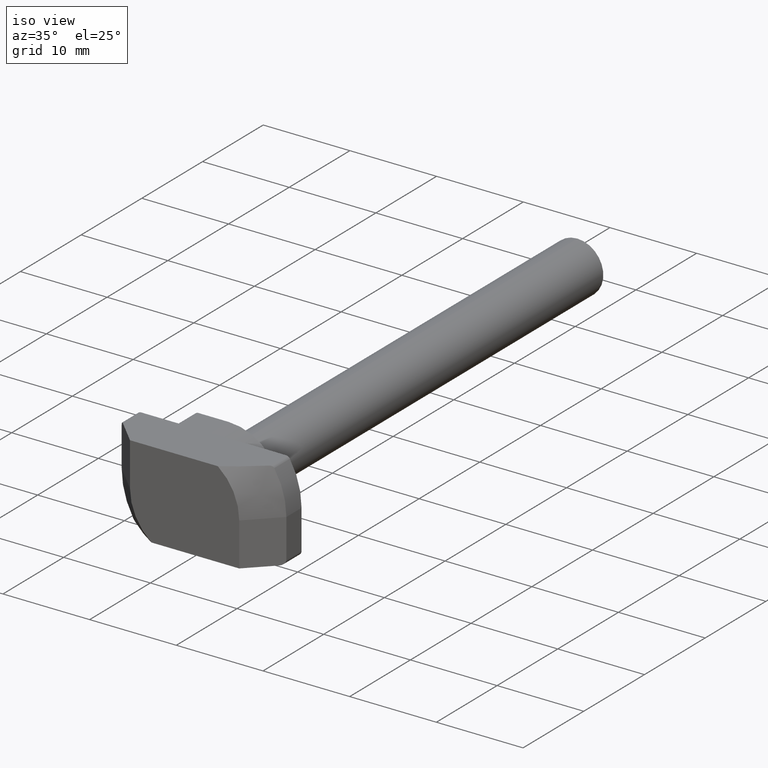
[diagram: clean part render]
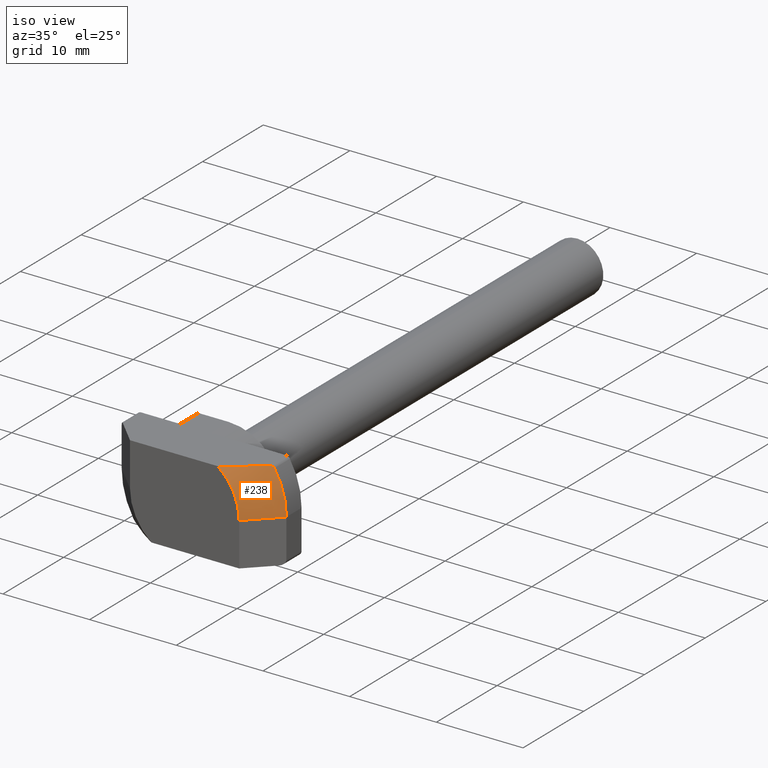
[diagram: same view with one face highlighted and labeled with its STEP entity id]
A machine part, iso view. The second image highlights one B-rep face of the part: STEP entity #238.
In plain terms, the highlighted conical surface has half-angle 45 deg.
Its self-contained STEP definition (entity closure, byte-faithful):
#1 = VERTEX_POINT ( 'NONE', #114 ) ;
#12 = DIRECTION ( 'NONE',  ( 0.000000000000000000, 0.000000000000000000, 1.000000000000000000 ) ) ;
#29 = DIRECTION ( 'NONE',  ( -0.7071067811865474617, -0.7071067811865474617, -0.000000000000000000 ) ) ;
#38 = EDGE_CURVE ( 'NONE', #872, #479, #396, .T. ) ;
#100 = CARTESIAN_POINT ( 'NONE',  ( 8.590887771462600853, -1.189937505768506432, 4.048601022340985622 ) ) ;
#102 = EDGE_CURVE ( 'NONE', #671, #106, #378, .T. ) ;
#106 = VERTEX_POINT ( 'NONE', #158 ) ;
#112 = ORIENTED_EDGE ( 'NONE', *, *, #495, .F. ) ;
#114 = CARTESIAN_POINT ( 'NONE',  ( 9.499999999999998224, -1.150000000000005240, 0.000000000000000000 ) ) ;
#127 = CARTESIAN_POINT ( 'NONE',  ( 3.832753579347366379, -4.349999999999999645, 5.000000000000000000 ) ) ;
#151 = CARTESIAN_POINT ( 'NONE',  ( 7.725812383582646881, -1.447382058005527217, 5.000000000000000000 ) ) ;
#158 = CARTESIAN_POINT ( 'NONE',  ( 6.300000000000000711, -4.349999999999999645, 0.000000000000000000 ) ) ;
#174 = ORIENTED_EDGE ( 'NONE', *, *, #102, .T. ) ;
#238 = ADVANCED_FACE ( 'NONE', ( #589 ), #295, .T. ) ;
#249 = CARTESIAN_POINT ( 'NONE',  ( 9.499999999999998224, -1.150000000000005240, 0.000000000000000000 ) ) ;
#267 = CARTESIAN_POINT ( 'NONE',  ( 5.184422045641049692, -3.459625232567117070, 5.000000000000000000 ) ) ;
#275 = B_SPLINE_CURVE_WITH_KNOTS ( 'NONE', 3,
 ( #692, #486, #290, #267, #355, #549 ),
 .UNSPECIFIED., .F., .F.,
 ( 4, 2, 4 ),
 ( 0.01236756277886352437, 0.01479903702219442785, 0.01723051126552533133 ),
 .UNSPECIFIED. ) ;
#285 = CARTESIAN_POINT ( 'NONE',  ( 7.799374578487676679, -1.385624879782098029, 5.000000000000998313 ) ) ;
#290 = CARTESIAN_POINT ( 'NONE',  ( 6.476013522807039458, -2.479197805821869327, 5.000000000000000888 ) ) ;
#291 = ORIENTED_EDGE ( 'NONE', *, *, #733, .F. ) ;
#295 = CONICAL_SURFACE ( 'NONE', #809, 14.00000000000000178, 0.7853981633974482790 ) ;
#303 = CARTESIAN_POINT ( 'NONE',  ( 7.876652734932794608, -1.329097432358700814, 4.984263951443676177 ) ) ;
#306 = CARTESIAN_POINT ( 'NONE',  ( 7.725812383582646881, -1.447382058005527217, 5.000000000000000000 ) ) ;
#314 = CARTESIAN_POINT ( 'NONE',  ( 8.151587862237940740, -1.209326124765692123, 4.762135922330097415 ) ) ;
#355 = CARTESIAN_POINT ( 'NONE',  ( 4.522527495930604324, -3.930359770202403347, 5.000000000000000000 ) ) ;
#378 = CIRCLE ( 'NONE', #618, 6.300000000000002487 ) ;
#391 = DIRECTION ( 'NONE',  ( 0.000000000000000000, 1.000000000000000000, 0.000000000000000000 ) ) ;
#396 = B_SPLINE_CURVE_WITH_KNOTS ( 'NONE', 3,
 ( #417, #695, #475, #303, #285, #151 ),
 .UNSPECIFIED., .F., .F.,
 ( 4, 2, 4 ),
 ( 8.940560153363745023E-19, 0.0002849164371806488000, 0.0005698328743612967326 ),
 .UNSPECIFIED. ) ;
#417 = CARTESIAN_POINT ( 'NONE',  ( 8.151587862237940740, -1.209326124765692123, 4.762135922330097415 ) ) ;
#475 = CARTESIAN_POINT ( 'NONE',  ( 8.028570203800233784, -1.240924480938201180, 4.906942365157981989 ) ) ;
#479 = VERTEX_POINT ( 'NONE', #306 ) ;
#486 = CARTESIAN_POINT ( 'NONE',  ( 7.105122349263792714, -1.968465817402325957, 4.999999999999999112 ) ) ;
#495 = EDGE_CURVE ( 'NONE', #872, #1, #650, .T. ) ;
#507 = CARTESIAN_POINT ( 'NONE',  ( 0.000000000000000000, -4.349999999999999645, 0.000000000000000000 ) ) ;
#549 = CARTESIAN_POINT ( 'NONE',  ( 3.832753579347366379, -4.349999999999999645, 5.000000000000000000 ) ) ;
#555 = EDGE_CURVE ( 'NONE', #479, #671, #275, .T. ) ;
#589 = FACE_OUTER_BOUND ( 'NONE', #725, .T. ) ;
#594 = CARTESIAN_POINT ( 'NONE',  ( 0.000000000000000000, 3.349999999999999645, 0.000000000000000000 ) ) ;
#618 = AXIS2_PLACEMENT_3D ( 'NONE', #507, #925, #12 ) ;
#628 = CARTESIAN_POINT ( 'NONE',  ( 8.151587862237940740, -1.209326124765692123, 4.762135922330097415 ) ) ;
#644 = VECTOR ( 'NONE', #29, 1000.000000000000114 ) ;
#650 = B_SPLINE_CURVE_WITH_KNOTS ( 'NONE', 3,
 ( #314, #100, #886, #881, #799, #249 ),
 .UNSPECIFIED., .F., .F.,
 ( 4, 2, 4 ),
 ( 0.0002796537634462441984, 0.002774943371933083491, 0.005270232980419922893 ),
 .UNSPECIFIED. ) ;
#655 = DIRECTION ( 'NONE',  ( 0.000000000000000000, 0.000000000000000000, 1.000000000000000000 ) ) ;
#671 = VERTEX_POINT ( 'NONE', #127 ) ;
#692 = CARTESIAN_POINT ( 'NONE',  ( 7.725812383582646881, -1.447382058005527217, 5.000000000000000000 ) ) ;
#695 = CARTESIAN_POINT ( 'NONE',  ( 8.100943385825212673, -1.211561332278509928, 4.844395446298436880 ) ) ;
#719 = ORIENTED_EDGE ( 'NONE', *, *, #555, .T. ) ;
#725 = EDGE_LOOP ( 'NONE', ( #112, #821, #719, #174, #291 ) ) ;
#733 = EDGE_CURVE ( 'NONE', #1, #106, #747, .T. ) ;
#747 = LINE ( 'NONE', #753, #644 ) ;
#753 = CARTESIAN_POINT ( 'NONE',  ( 4.300000000000000711, -6.349999999999999645, 0.000000000000000000 ) ) ;
#799 = CARTESIAN_POINT ( 'NONE',  ( 9.499999999999998224, -1.150000000000005018, 0.8418069447424972873 ) ) ;
#809 = AXIS2_PLACEMENT_3D ( 'NONE', #594, #391, #655 ) ;
#821 = ORIENTED_EDGE ( 'NONE', *, *, #38, .T. ) ;
#872 = VERTEX_POINT ( 'NONE', #628 ) ;
#881 = CARTESIAN_POINT ( 'NONE',  ( 9.385035436862654734, -1.155038290094152043, 1.668328248109849588 ) ) ;
#886 = CARTESIAN_POINT ( 'NONE',  ( 8.925963756623914946, -1.175205113616131225, 3.287372898913829999 ) ) ;
#925 = DIRECTION ( 'NONE',  ( 0.000000000000000000, 1.000000000000000000, -0.000000000000000000 ) ) ;